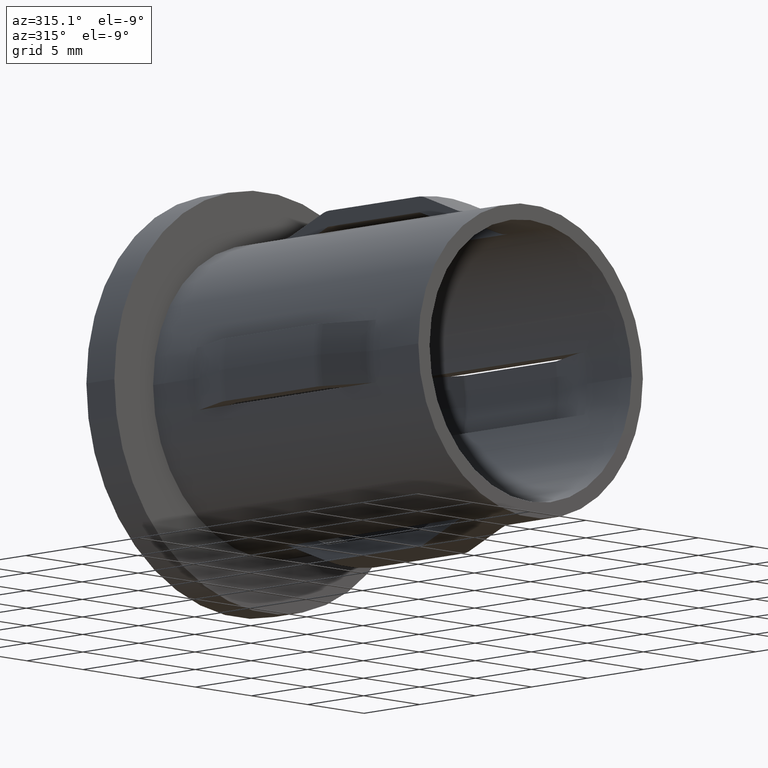
[diagram: clean part render]
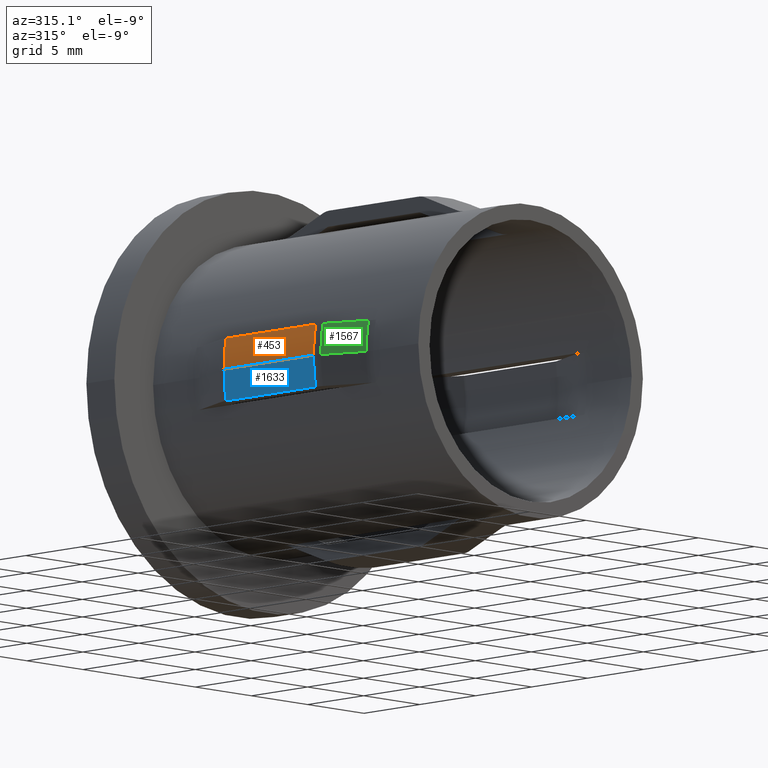
[diagram: same view with three faces highlighted in distinct colors, each labeled with its STEP entity id]
A machine part, auxiliary view with three faces highlighted in distinct colors.
Their STEP definitions:

[orange] entity #453 — the highlighted cylindrical surface (partial cylindrical patch) has radius 11.35 mm, axis along (0, 1, -0).
#395 = CARTESIAN_POINT ( 'NONE',  ( -11.17239902617159686, 20.00000000000000000, 2.000000000000000000 ) ) ;
#453 = ADVANCED_FACE ( 'NONE', ( #4588 ), #11601, .T. ) ;
#736 = DIRECTION ( 'NONE',  ( 7.347880794884120229E-17, 1.000000000000000000, -0.000000000000000000 ) ) ;
#1511 = DIRECTION ( 'NONE',  ( -1.000000000000000000, 0.000000000000000000, 0.000000000000000000 ) ) ;
#1515 = DIRECTION ( 'NONE',  ( -0.000000000000000000, -1.000000000000000000, -0.000000000000000000 ) ) ;
#1565 = CARTESIAN_POINT ( 'NONE',  ( -11.35000000000000497, 7.999999999999996447, 0.000000000000000000 ) ) ;
#1590 = DIRECTION ( 'NONE',  ( -1.000000000000000000, 0.000000000000000000, 0.000000000000000000 ) ) ;
#1647 = DIRECTION ( 'NONE',  ( 7.347880794884120229E-17, 1.000000000000000000, -0.000000000000000000 ) ) ;
#1949 = VERTEX_POINT ( 'NONE', #10417 ) ;
#1979 = CARTESIAN_POINT ( 'NONE',  ( -11.35000000000000320, 26.19999999999999929, 0.000000000000000000 ) ) ;
#1983 = EDGE_CURVE ( 'NONE', #10716, #4470, #8416, .T. ) ;
#2052 = DIRECTION ( 'NONE',  ( 7.347880794884120229E-17, 1.000000000000000000, -0.000000000000000000 ) ) ;
#2621 = AXIS2_PLACEMENT_3D ( 'NONE', #7108, #736, #1511 ) ;
#2970 = CIRCLE ( 'NONE', #2621, 11.35000000000000497 ) ;
#3063 = EDGE_CURVE ( 'NONE', #12374, #4470, #2970, .T. ) ;
#3143 = EDGE_CURVE ( 'NONE', #1949, #10716, #13350, .T. ) ;
#3717 = ORIENTED_EDGE ( 'NONE', *, *, #1983, .F. ) ;
#3915 = CARTESIAN_POINT ( 'NONE',  ( -11.17239902617159686, 16.00000000000000000, 2.000000000000000000 ) ) ;
#4470 = VERTEX_POINT ( 'NONE', #10192 ) ;
#4588 = FACE_OUTER_BOUND ( 'NONE', #10928, .T. ) ;
#4610 = LINE ( 'NONE', #1979, #6517 ) ;
#6517 = VECTOR ( 'NONE', #9775, 1000.000000000000000 ) ;
#7108 = CARTESIAN_POINT ( 'NONE',  ( -9.699202649247035646E-16, 7.999999999999996447, 0.000000000000000000 ) ) ;
#7114 = ORIENTED_EDGE ( 'NONE', *, *, #3143, .F. ) ;
#7391 = ORIENTED_EDGE ( 'NONE', *, *, #3063, .T. ) ;
#8416 = LINE ( 'NONE', #395, #14081 ) ;
#8594 = AXIS2_PLACEMENT_3D ( 'NONE', #14431, #2052, #9816 ) ;
#9652 = AXIS2_PLACEMENT_3D ( 'NONE', #11821, #1647, #1590 ) ;
#9775 = DIRECTION ( 'NONE',  ( 7.347880794884120229E-17, 1.000000000000000000, -0.000000000000000000 ) ) ;
#9816 = DIRECTION ( 'NONE',  ( -1.000000000000000000, 0.000000000000000000, 0.000000000000000000 ) ) ;
#10192 = CARTESIAN_POINT ( 'NONE',  ( -11.17239902617159686, 7.999999999999996447, 2.000000000000000000 ) ) ;
#10417 = CARTESIAN_POINT ( 'NONE',  ( -11.34999999999999964, 16.00000000000000000, 0.000000000000000000 ) ) ;
#10716 = VERTEX_POINT ( 'NONE', #3915 ) ;
#10827 = EDGE_CURVE ( 'NONE', #12374, #1949, #4610, .T. ) ;
#10928 = EDGE_LOOP ( 'NONE', ( #14308, #7391, #3717, #7114 ) ) ;
#11601 = CYLINDRICAL_SURFACE ( 'NONE', #8594, 11.35000000000000320 ) ;
#11821 = CARTESIAN_POINT ( 'NONE',  ( -3.820898013339737983E-16, 16.00000000000000000, 0.000000000000000000 ) ) ;
#12374 = VERTEX_POINT ( 'NONE', #1565 ) ;
#13350 = CIRCLE ( 'NONE', #9652, 11.34999999999999964 ) ;
#14081 = VECTOR ( 'NONE', #1515, 1000.000000000000000 ) ;
#14308 = ORIENTED_EDGE ( 'NONE', *, *, #10827, .F. ) ;
#14431 = CARTESIAN_POINT ( 'NONE',  ( 3.673940397442062826E-16, 26.19999999999999929, 0.000000000000000000 ) ) ;

[blue] entity #1633 — the highlighted cylindrical surface (partial cylindrical patch) has radius 11.35 mm, axis along (0, 1, -0).
#271 = EDGE_CURVE ( 'NONE', #8470, #12374, #7900, .T. ) ;
#323 = CARTESIAN_POINT ( 'NONE',  ( -11.17239902617159686, 7.999999999999996447, -2.000000000000000000 ) ) ;
#1565 = CARTESIAN_POINT ( 'NONE',  ( -11.35000000000000497, 7.999999999999996447, 0.000000000000000000 ) ) ;
#1633 = ADVANCED_FACE ( 'NONE', ( #3509 ), #9484, .T. ) ;
#1914 = ORIENTED_EDGE ( 'NONE', *, *, #271, .T. ) ;
#1949 = VERTEX_POINT ( 'NONE', #10417 ) ;
#1979 = CARTESIAN_POINT ( 'NONE',  ( -11.35000000000000320, 26.19999999999999929, 0.000000000000000000 ) ) ;
#2067 = CARTESIAN_POINT ( 'NONE',  ( 3.673940397442062826E-16, 26.19999999999999929, 0.000000000000000000 ) ) ;
#2688 = LINE ( 'NONE', #10784, #8284 ) ;
#3351 = VERTEX_POINT ( 'NONE', #9334 ) ;
#3509 = FACE_OUTER_BOUND ( 'NONE', #12881, .T. ) ;
#4046 = DIRECTION ( 'NONE',  ( -0.000000000000000000, -1.000000000000000000, -0.000000000000000000 ) ) ;
#4605 = EDGE_CURVE ( 'NONE', #3351, #1949, #9441, .T. ) ;
#4610 = LINE ( 'NONE', #1979, #6517 ) ;
#4772 = AXIS2_PLACEMENT_3D ( 'NONE', #2067, #10858, #14506 ) ;
#4952 = CARTESIAN_POINT ( 'NONE',  ( -9.699202649247035646E-16, 7.999999999999996447, 0.000000000000000000 ) ) ;
#6471 = CARTESIAN_POINT ( 'NONE',  ( -3.820898013339737983E-16, 16.00000000000000000, 0.000000000000000000 ) ) ;
#6517 = VECTOR ( 'NONE', #9775, 1000.000000000000000 ) ;
#7039 = ORIENTED_EDGE ( 'NONE', *, *, #10886, .T. ) ;
#7235 = DIRECTION ( 'NONE',  ( 7.347880794884120229E-17, 1.000000000000000000, -0.000000000000000000 ) ) ;
#7368 = AXIS2_PLACEMENT_3D ( 'NONE', #4952, #7235, #12756 ) ;
#7900 = CIRCLE ( 'NONE', #7368, 11.35000000000000497 ) ;
#8284 = VECTOR ( 'NONE', #4046, 1000.000000000000000 ) ;
#8415 = ORIENTED_EDGE ( 'NONE', *, *, #10827, .T. ) ;
#8470 = VERTEX_POINT ( 'NONE', #323 ) ;
#8695 = DIRECTION ( 'NONE',  ( 7.347880794884120229E-17, 1.000000000000000000, -0.000000000000000000 ) ) ;
#9334 = CARTESIAN_POINT ( 'NONE',  ( -11.17239902617159686, 16.00000000000000000, -2.000000000000000000 ) ) ;
#9441 = CIRCLE ( 'NONE', #10554, 11.34999999999999964 ) ;
#9484 = CYLINDRICAL_SURFACE ( 'NONE', #4772, 11.35000000000000320 ) ;
#9770 = DIRECTION ( 'NONE',  ( -1.000000000000000000, 0.000000000000000000, 0.000000000000000000 ) ) ;
#9775 = DIRECTION ( 'NONE',  ( 7.347880794884120229E-17, 1.000000000000000000, -0.000000000000000000 ) ) ;
#10417 = CARTESIAN_POINT ( 'NONE',  ( -11.34999999999999964, 16.00000000000000000, 0.000000000000000000 ) ) ;
#10554 = AXIS2_PLACEMENT_3D ( 'NONE', #6471, #8695, #9770 ) ;
#10784 = CARTESIAN_POINT ( 'NONE',  ( -11.17239902617159686, 20.00000000000000000, -2.000000000000000000 ) ) ;
#10827 = EDGE_CURVE ( 'NONE', #12374, #1949, #4610, .T. ) ;
#10858 = DIRECTION ( 'NONE',  ( 7.347880794884120229E-17, 1.000000000000000000, -0.000000000000000000 ) ) ;
#10886 = EDGE_CURVE ( 'NONE', #3351, #8470, #2688, .T. ) ;
#12374 = VERTEX_POINT ( 'NONE', #1565 ) ;
#12499 = ORIENTED_EDGE ( 'NONE', *, *, #4605, .F. ) ;
#12756 = DIRECTION ( 'NONE',  ( -1.000000000000000000, 0.000000000000000000, 0.000000000000000000 ) ) ;
#12881 = EDGE_LOOP ( 'NONE', ( #1914, #8415, #12499, #7039 ) ) ;
#14506 = DIRECTION ( 'NONE',  ( -1.000000000000000000, 0.000000000000000000, 0.000000000000000000 ) ) ;

[green] entity #1567 — the highlighted conical surface has half-angle 21.478 deg.
#693 = EDGE_CURVE ( 'NONE', #7880, #13986, #4148, .T. ) ;
#711 = AXIS2_PLACEMENT_3D ( 'NONE', #840, #6393, #14397 ) ;
#840 = CARTESIAN_POINT ( 'NONE',  ( -1.223479662264361109E-15, 4.549217326495067937, 0.000000000000000000 ) ) ;
#994 = CIRCLE ( 'NONE', #9327, 10.10416321574562382 ) ;
#1206 = CONICAL_SURFACE ( 'NONE', #711, 10.10416321574562382, 0.3748628261527548466 ) ;
#1375 = FACE_OUTER_BOUND ( 'NONE', #2698, .T. ) ;
#1548 = CARTESIAN_POINT ( 'NONE',  ( -10.29237573940762296, 5.516129468413101478, 2.000000000000000000 ) ) ;
#1567 = ADVANCED_FACE ( 'NONE', ( #1375 ), #1206, .T. ) ;
#2202 = EDGE_CURVE ( 'NONE', #3609, #7694, #12099, .T. ) ;
#2275 = DIRECTION ( 'NONE',  ( -1.000000000000000000, 8.584201575809537935E-17, 0.000000000000000000 ) ) ;
#2602 = ORIENTED_EDGE ( 'NONE', *, *, #693, .T. ) ;
#2698 = EDGE_LOOP ( 'NONE', ( #6470, #9984, #2602, #6009 ) ) ;
#3510 = CARTESIAN_POINT ( 'NONE',  ( -1.223479662264361109E-15, 4.549217326495067937, 0.000000000000000000 ) ) ;
#3609 = VERTEX_POINT ( 'NONE', #6008 ) ;
#4148 = B_SPLINE_CURVE_WITH_KNOTS ( 'NONE', 3,
 ( #7340, #1548, #10551, #11679 ),
 .UNSPECIFIED., .F., .F.,
 ( 4, 4 ),
 ( 0.005973193366998451499, 0.009098898504842198656 ),
 .UNSPECIFIED. ) ;
#4171 = DIRECTION ( 'NONE',  ( 7.347880794884120229E-17, 1.000000000000000000, -0.000000000000000000 ) ) ;
#4474 = EDGE_CURVE ( 'NONE', #3609, #7880, #994, .T. ) ;
#5363 = CIRCLE ( 'NONE', #7636, 11.24583678425438471 ) ;
#5808 = CARTESIAN_POINT ( 'NONE',  ( -9.904247285403721790, 4.549217326495068825, 2.000000000000000000 ) ) ;
#6008 = CARTESIAN_POINT ( 'NONE',  ( -10.10416321574562559, 4.549217326495068825, 0.000000000000000000 ) ) ;
#6009 = ORIENTED_EDGE ( 'NONE', *, *, #7939, .F. ) ;
#6393 = DIRECTION ( 'NONE',  ( 7.347880794884120229E-17, 1.000000000000000000, -0.000000000000000000 ) ) ;
#6419 = DIRECTION ( 'NONE',  ( -1.000000000000000000, 7.712736318588771321E-17, 0.000000000000000000 ) ) ;
#6470 = ORIENTED_EDGE ( 'NONE', *, *, #2202, .F. ) ;
#7340 = CARTESIAN_POINT ( 'NONE',  ( -9.904247285403721790, 4.549217326495068825, 2.000000000000000000 ) ) ;
#7636 = AXIS2_PLACEMENT_3D ( 'NONE', #13024, #4171, #6419 ) ;
#7694 = VERTEX_POINT ( 'NONE', #9588 ) ;
#7880 = VERTEX_POINT ( 'NONE', #5808 ) ;
#7939 = EDGE_CURVE ( 'NONE', #7694, #13986, #5363, .T. ) ;
#8926 = DIRECTION ( 'NONE',  ( -0.3661448843300455502, 0.9305578561695868611, 0.000000000000000000 ) ) ;
#9327 = AXIS2_PLACEMENT_3D ( 'NONE', #3510, #10027, #2275 ) ;
#9588 = CARTESIAN_POINT ( 'NONE',  ( -11.24583678425438649, 7.450782673504929399, 0.000000000000000000 ) ) ;
#9984 = ORIENTED_EDGE ( 'NONE', *, *, #4474, .T. ) ;
#10027 = DIRECTION ( 'NONE',  ( 7.347880794884120229E-17, 1.000000000000000000, -0.000000000000000000 ) ) ;
#10551 = CARTESIAN_POINT ( 'NONE',  ( -10.67974286554496821, 6.483347320982796091, 2.000000000000000000 ) ) ;
#11679 = CARTESIAN_POINT ( 'NONE',  ( -11.06656428066493625, 7.450782673504929399, 2.000000000000000000 ) ) ;
#12099 = LINE ( 'NONE', #14621, #13172 ) ;
#12608 = CARTESIAN_POINT ( 'NONE',  ( -11.06656428066493625, 7.450782673504929399, 2.000000000000000000 ) ) ;
#13024 = CARTESIAN_POINT ( 'NONE',  ( -1.010276099380410730E-15, 7.450782673504928511, 0.000000000000000000 ) ) ;
#13172 = VECTOR ( 'NONE', #8926, 1000.000000000000000 ) ;
#13986 = VERTEX_POINT ( 'NONE', #12608 ) ;
#14397 = DIRECTION ( 'NONE',  ( -1.000000000000000000, 8.584201575809537935E-17, 0.000000000000000000 ) ) ;
#14621 = CARTESIAN_POINT ( 'NONE',  ( -10.10416321574562559, 4.549217326495068825, 0.000000000000000000 ) ) ;